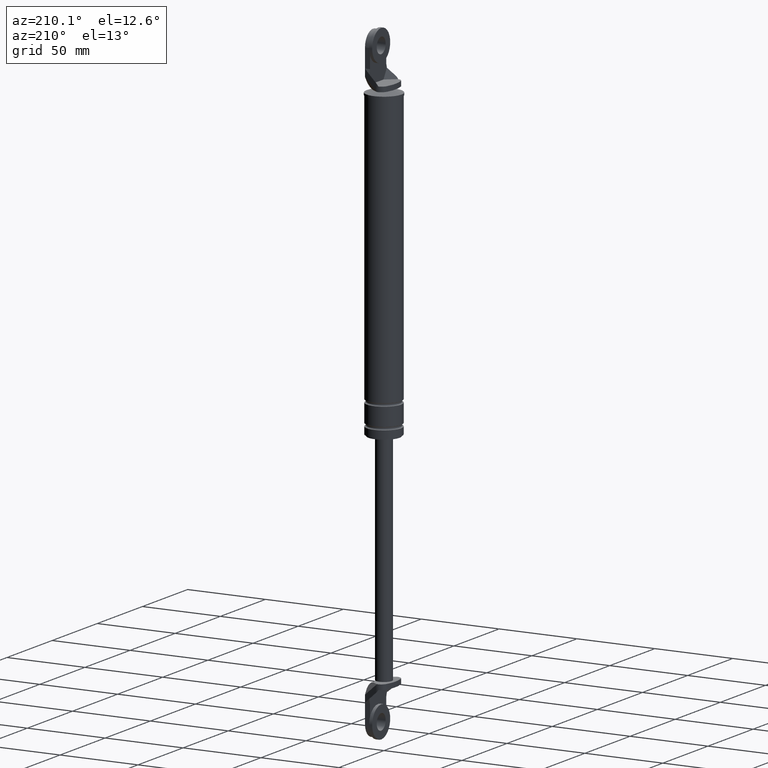
[diagram: clean part render]
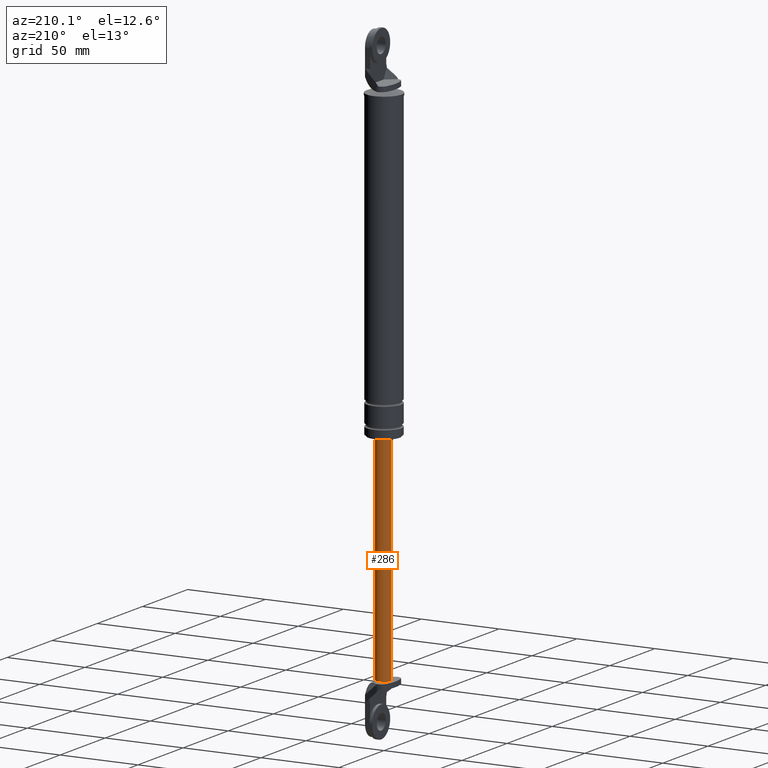
[diagram: same view with one face highlighted and labeled with its STEP entity id]
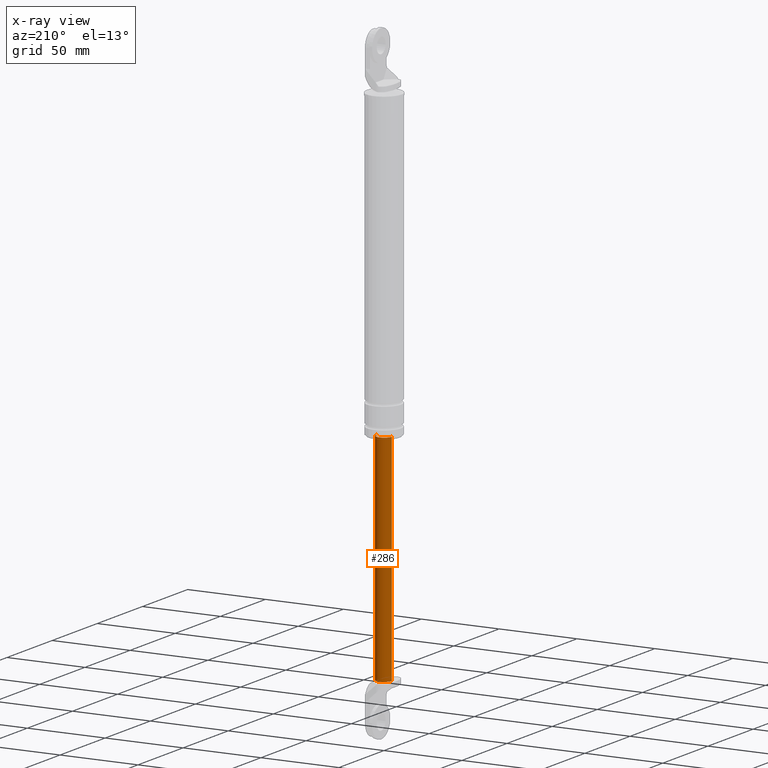
[diagram: x-ray of the same camera — body ghosted, the highlighted face saturated]
A machine part, auxiliary view. The second image highlights one B-rep face of the part: STEP entity #286.
The next image is the same camera in x-ray: the body ghosted, the highlighted face saturated — about 0% of this face is hidden behind the body in this view.
In plain terms, the highlighted cylindrical surface (edge-blend (fillet) strip) has radius 5 mm, axis along (0, 0, 1).
Its self-contained STEP definition (entity closure, byte-faithful):
#286=ADVANCED_FACE('',(#1119),#1118,.T.);
#1118=CYLINDRICAL_SURFACE('',#1778,5.00000000000E+000);
#1119=FACE_OUTER_BOUND('',#1779,.T.);
#1775=CARTESIAN_POINT('',(0.00000000000E+000,3.58204186421E-014,0.00000000000E+000));
#1776=DIRECTION('',(-0.00000000000E+000,-0.00000000000E+000,1.00000000000E+000));
#1777=DIRECTION('',(-1.00000000000E+000,1.22464679915E-016,0.00000000000E+000));
#1778=AXIS2_PLACEMENT_3D('',#1775,#1776,#1777);
#1779=EDGE_LOOP('',(#2175,#2176,#2177,#2178,#2179));
#2175=ORIENTED_EDGE('',*,*,#2364,.F.);
#2176=ORIENTED_EDGE('',*,*,#2375,.F.);
#2177=ORIENTED_EDGE('',*,*,#2378,.T.);
#2178=ORIENTED_EDGE('',*,*,#2361,.F.);
#2179=ORIENTED_EDGE('',*,*,#2379,.F.);
#2361=EDGE_CURVE('',#3587,#3588,#3589,.T.);
#2364=EDGE_CURVE('',#3347,#3608,#3609,.T.);
#2375=EDGE_CURVE('',#3671,#3347,#3678,.T.);
#2378=EDGE_CURVE('',#3671,#3588,#3696,.T.);
#2379=EDGE_CURVE('',#3608,#3587,#3702,.T.);
#3347=VERTEX_POINT('',#4307);
#3587=VERTEX_POINT('',#4445);
#3588=VERTEX_POINT('',#4446);
#3589=CIRCLE('',#4450,5.00000000000E+000);
#3608=VERTEX_POINT('',#4459);
#3609=CIRCLE('',#4463,5.00000000000E+000);
#3671=VERTEX_POINT('',#4497);
#3678=CIRCLE('',#4505,5.00000000000E+000);
#3696=(BOUNDED_CURVE() B_SPLINE_CURVE(1,(#4510,#4511),.UNSPECIFIED.,.F.,.F.) B_SPLINE_CURVE_WITH_KNOTS((2,2),(6.28930816424E-002,9.37106918113E-001),.UNSPECIFIED.) CURVE() GEOMETRIC_REPRESENTATION_ITEM() RATIONAL_B_SPLINE_CURVE((1.00000000000E+000,1.00000000000E+000)) REPRESENTATION_ITEM('') );
#3702=(BOUNDED_CURVE() B_SPLINE_CURVE(1,(#4512,#4513),.UNSPECIFIED.,.F.,.F.) B_SPLINE_CURVE_WITH_KNOTS((2,2),(6.28930817610E-002,9.37106918239E-001),.UNSPECIFIED.) CURVE() GEOMETRIC_REPRESENTATION_ITEM() RATIONAL_B_SPLINE_CURVE((7.50000000000E-001,7.50000000000E-001)) REPRESENTATION_ITEM('') );
#4307=CARTESIAN_POINT('',(2.00000000000E+000,4.58257569496E+000,-2.48000015000E+002));
#4445=CARTESIAN_POINT('',(5.00000000000E+000,3.58204186421E-014,-1.09000015000E+002));
#4446=CARTESIAN_POINT('',(-5.00000000000E+000,3.58231962612E-014,-1.09000015000E+002));
#4447=CARTESIAN_POINT('',(0.00000000000E+000,3.58204186421E-014,-1.09000015000E+002));
#4448=DIRECTION('',(0.00000000000E+000,0.00000000000E+000,1.00000000000E+000));
#4449=DIRECTION('',(1.00000000000E+000,-1.22460635382E-016,0.00000000000E+000));
#4450=AXIS2_PLACEMENT_3D('',#4447,#4448,#4449);
#4459=CARTESIAN_POINT('',(5.00000000000E+000,2.22686622272E-006,-2.48000015000E+002));
#4460=CARTESIAN_POINT('',(0.00000000000E+000,3.58204186421E-014,-2.48000015000E+002));
#4461=DIRECTION('',(0.00000000000E+000,0.00000000000E+000,-1.00000000000E+000));
#4462=DIRECTION('',(4.00000000000E-001,9.16515138991E-001,0.00000000000E+000));
#4463=AXIS2_PLACEMENT_3D('',#4460,#4461,#4462);
#4497=CARTESIAN_POINT('',(-5.00000000000E+000,-1.92829149747E-008,-2.48000015000E+002));
#4502=CARTESIAN_POINT('',(0.00000000000E+000,3.58204186421E-014,-2.48000015000E+002));
#4503=DIRECTION('',(0.00000000000E+000,0.00000000000E+000,-1.00000000000E+000));
#4504=DIRECTION('',(1.00000000000E+000,-0.00000000000E+000,-0.00000000000E+000));
#4505=AXIS2_PLACEMENT_3D('',#4502,#4503,#4504);
#4510=CARTESIAN_POINT('',(-5.00000000000E+000,3.64327420417E-014,-2.48000015019E+002));
#4511=CARTESIAN_POINT('',(-5.00000000000E+000,3.64327420417E-014,-1.09000015020E+002));
#4512=CARTESIAN_POINT('',(5.00000000000E+000,3.55271367880E-014,-2.48000015000E+002));
#4513=CARTESIAN_POINT('',(5.00000000000E+000,3.55271367880E-014,-1.09000015000E+002));